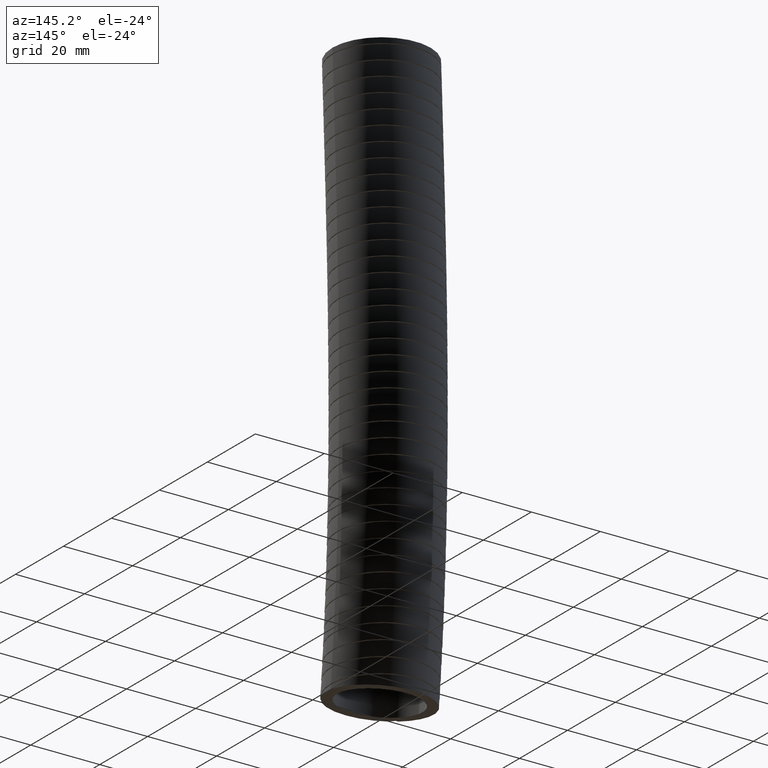
[diagram: clean part render]
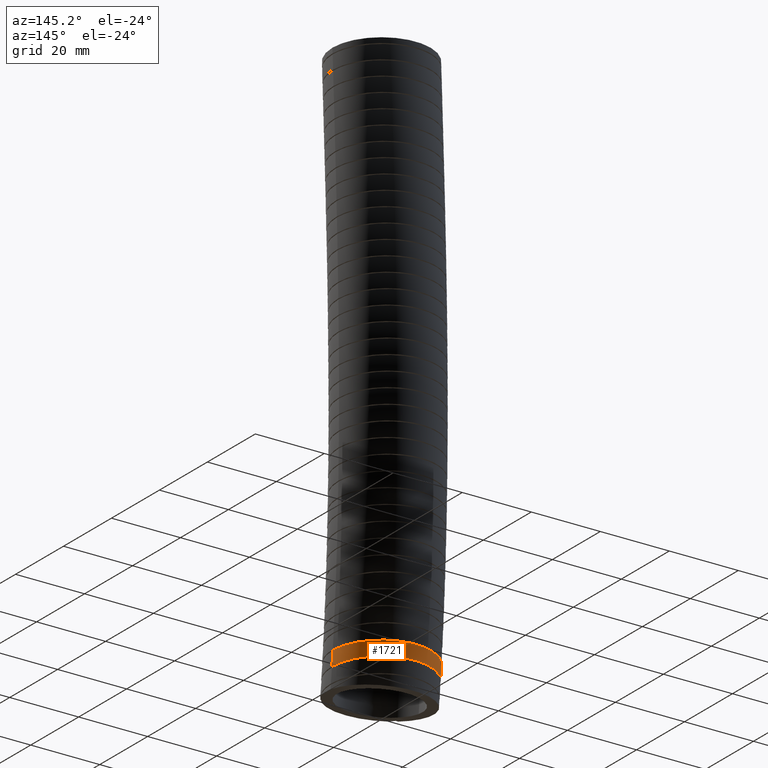
[diagram: same view with one face highlighted and labeled with its STEP entity id]
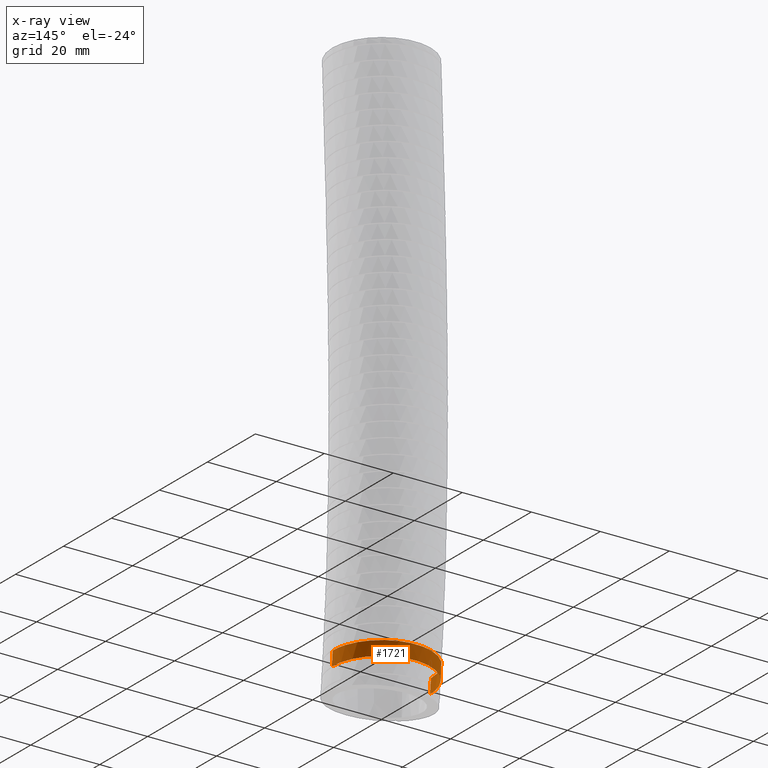
[diagram: x-ray of the same camera — body ghosted, the highlighted face saturated]
A machine part, auxiliary view. The second image highlights one B-rep face of the part: STEP entity #1721.
The next image is the same camera in x-ray: the body ghosted, the highlighted face saturated — about 0% of this face is hidden behind the body in this view.
In plain terms, the highlighted face is a freeform B-spline surface patch.
Its self-contained STEP definition (entity closure, byte-faithful):
#188 = EDGE_CURVE ( 'NONE', #1097, #1078, #15133, .T. ) ;
#1074 = EDGE_CURVE ( 'NONE', #1091, #1085, #3724, .T. ) ;
#1078 = VERTEX_POINT ( 'NONE', #3740 ) ;
#1085 = VERTEX_POINT ( 'NONE', #3812 ) ;
#1091 = VERTEX_POINT ( 'NONE', #3841 ) ;
#1097 = VERTEX_POINT ( 'NONE', #3878 ) ;
#1709 = ORIENTED_EDGE ( 'NONE', *, *, #188, .T. ) ;
#1710 = EDGE_CURVE ( 'NONE', #1078, #1085, #6601, .T. ) ;
#1711 = ORIENTED_EDGE ( 'NONE', *, *, #1710, .T. ) ;
#1713 = EDGE_CURVE ( 'NONE', #1091, #1097, #6744, .T. ) ;
#1714 = ORIENTED_EDGE ( 'NONE', *, *, #1074, .F. ) ;
#1720 = EDGE_LOOP ( 'NONE', ( #1714, #1722, #1709, #1711 ) ) ;
#1721 = ADVANCED_FACE ( 'NONE', ( #6757 ), #6846, .T. ) ;
#1722 = ORIENTED_EDGE ( 'NONE', *, *, #1713, .T. ) ;
#3719 = CARTESIAN_POINT ( 'NONE',  ( -0.5600000000000000500, 0.004579506568496222000, -6.185293988126973700 ) ) ;
#3724 = B_SPLINE_CURVE_WITH_KNOTS ( 'NONE', 3,
 ( #3719, #3763, #3762, #3761 ),
 .UNSPECIFIED., .F., .F.,
 ( 4, 4 ),
 ( 0.9412347365150162100, 0.9655731693197848700 ),
 .UNSPECIFIED. ) ;
#3740 = CARTESIAN_POINT ( 'NONE',  ( 0.5600000000000000500, -0.009474696098405479400, -6.344636470994580600 ) ) ;
#3761 = CARTESIAN_POINT ( 'NONE',  ( -0.5600000000000000500, -0.009474696098404102000, -6.344636470994571700 ) ) ;
#3762 = CARTESIAN_POINT ( 'NONE',  ( -0.5600000000000000500, -0.004703679289330347500, -6.291525943041802900 ) ) ;
#3763 = CARTESIAN_POINT ( 'NONE',  ( -0.5600000000000000500, -2.489960995242945900E-006, -6.238412474942438600 ) ) ;
#3812 = CARTESIAN_POINT ( 'NONE',  ( -0.5600000000000000500, -0.009474696098404102000, -6.344636470994571700 ) ) ;
#3841 = CARTESIAN_POINT ( 'NONE',  ( -0.5600000000000000500, 0.004579506568496222000, -6.185293988126973700 ) ) ;
#3878 = CARTESIAN_POINT ( 'NONE',  ( 0.5600000000000000500, 0.004579506601640613700, -6.185293987934851000 ) ) ;
#6592 = CARTESIAN_POINT ( 'NONE',  ( 0.5312811248861454300, 0.1718172325464569500, -6.344636470994572600 ) ) ;
#6593 = CARTESIAN_POINT ( 'NONE',  ( 0.5419118283538124600, 0.1368485339517939400, -6.344636470994566400 ) ) ;
#6594 = CARTESIAN_POINT ( 'NONE',  ( 0.5527283871951416100, 0.08261074771095514000, -6.344636470994566400 ) ) ;
#6595 = CARTESIAN_POINT ( 'NONE',  ( 0.5554614676232521000, 0.06423917054154734700, -6.344636470994571700 ) ) ;
#6596 = CARTESIAN_POINT ( 'NONE',  ( 0.5590887064225053000, 0.02749530520513777900, -6.344636470994572600 ) ) ;
#6597 = CARTESIAN_POINT ( 'NONE',  ( 0.5599999999999999400, 0.009048242773334326900, -6.344636470994581500 ) ) ;
#6598 = CARTESIAN_POINT ( 'NONE',  ( 0.5600000000000000500, -0.009474696098405479400, -6.344636470994580600 ) ) ;
#6601 = B_SPLINE_CURVE_WITH_KNOTS ( 'NONE', 3,
 ( #6598, #6597, #6596, #6595, #6594, #6593, #6592, #6674, #6673, #6672, #6671, #6670, #6669, #6668, #6667, #6666, #6665, #6664, #6663, #6662, #6661, #6660, #6659, #6658, #6657, #6656, #6655, #6653, #6652, #6651, #6650, #6649, #6648, #6647, #6646, #6645, #6644, #6643, #6642, #6641, #6640, #6639, #6638, #6637, #6636, #6635, #6634, #6633, #6632 ),
 .UNSPECIFIED., .F., .F.,
 ( 4, 2, 2, 2, 2, 2, 2, 2, 2, 2, 2, 2, 2, 2, 2, 2, 2, 2, 1, 2, 2, 2, 2, 2, 4 ),
 ( 0.0000000000000000000, 0.001406580719670298800, 0.002813161439340597500, 0.005626322878681197700, 0.007032903598351497800, 0.008439484318021798700, 0.01125264575736240100, 0.01265922647703270200, 0.01406580719670300800, 0.01687896863604361500, 0.01969213007538422200, 0.02109871079505452500, 0.02250529151472483200, 0.02531845295406543600, 0.02672503367373574000, 0.02813161439340604700, 0.03094477583274665700, 0.03235135655241696400, 0.03375793727208727800, 0.03516451799175758500, 0.03657109871142789200, 0.03938426015076852000, 0.04079084087043883400, 0.04219742159010914100, 0.04501058302944976200 ),
 .UNSPECIFIED. ) ;
#6632 = CARTESIAN_POINT ( 'NONE',  ( -0.5600000000000000500, -0.009474696098404102000, -6.344636470994571700 ) ) ;
#6633 = CARTESIAN_POINT ( 'NONE',  ( -0.5599999999999999400, 0.02726005440427129200, -6.344636470994572600 ) ) ;
#6634 = CARTESIAN_POINT ( 'NONE',  ( -0.5564412073094886500, 0.06361003411306205600, -6.344636470994571700 ) ) ;
#6635 = CARTESIAN_POINT ( 'NONE',  ( -0.5457947789936836700, 0.1175610856035945000, -6.344636470994571700 ) ) ;
#6636 = CARTESIAN_POINT ( 'NONE',  ( -0.5413313899076093200, 0.1355240193334814300, -6.344636470994572600 ) ) ;
#6637 = CARTESIAN_POINT ( 'NONE',  ( -0.5306594047788184600, 0.1708944209070781000, -6.344636470994572600 ) ) ;
#6638 = CARTESIAN_POINT ( 'NONE',  ( -0.5244949587176480600, 0.1881852768559424400, -6.344636470994571700 ) ) ;
#6639 = CARTESIAN_POINT ( 'NONE',  ( -0.5035887386781281400, 0.2389093101038390100, -6.344636470994574400 ) ) ;
#6640 = CARTESIAN_POINT ( 'NONE',  ( -0.4864570543319090600, 0.2712048872595196300, -6.344636470994570800 ) ) ;
#6641 = CARTESIAN_POINT ( 'NONE',  ( -0.4558342415702581500, 0.3173038109542701800, -6.344636470994574400 ) ) ;
#6642 = CARTESIAN_POINT ( 'NONE',  ( -0.4448156818517940400, 0.3322313429846535700, -6.344636470994577100 ) ) ;
#6643 = CARTESIAN_POINT ( 'NONE',  ( -0.4216045536915513100, 0.3606496335931740300, -6.344636470994577900 ) ) ;
#6644 = CARTESIAN_POINT ( 'NONE',  ( -0.3971125220149374600, 0.3877990486179720400, -6.344636470994566400 ) ) ;
#6645 = CARTESIAN_POINT ( 'NONE',  ( -0.3700916024010133500, 0.4124433224540648400, -6.344636470994565500 ) ) ;
#6646 = CARTESIAN_POINT ( 'NONE',  ( -0.3417860799822435800, 0.4358150561549981600, -6.344636470994565500 ) ) ;
#6647 = CARTESIAN_POINT ( 'NONE',  ( -0.3269034741015426300, 0.4469202310102173300, -6.344636470994576200 ) ) ;
#6648 = CARTESIAN_POINT ( 'NONE',  ( -0.2809862147107234900, 0.4777584033159156300, -6.344636470994576200 ) ) ;
#6649 = CARTESIAN_POINT ( 'NONE',  ( -0.2487790601573358600, 0.4950428050151481900, -6.344636470994568200 ) ) ;
#6650 = CARTESIAN_POINT ( 'NONE',  ( -0.1981272861311325400, 0.5161654282654074600, -6.344636470994565500 ) ) ;
#6651 = CARTESIAN_POINT ( 'NONE',  ( -0.1808504006507300500, 0.5223999201336055900, -6.344636470994575300 ) ) ;
#6652 = CARTESIAN_POINT ( 'NONE',  ( -0.1454847133053336600, 0.5332027957108961300, -6.344636470994574400 ) ) ;
#6653 = CARTESIAN_POINT ( 'NONE',  ( -0.1275665089770549000, 0.5377124780679880500, -6.344636470994570800 ) ) ;
#6655 = CARTESIAN_POINT ( 'NONE',  ( -0.07366987453226313300, 0.5484998158076152000, -6.344636470994567300 ) ) ;
#6656 = CARTESIAN_POINT ( 'NONE',  ( -0.03732322780077641800, 0.5521324568107837100, -6.344636470994572600 ) ) ;
#6657 = CARTESIAN_POINT ( 'NONE',  ( 0.01782657050802937900, 0.5521874384532484700, -6.344636470994572600 ) ) ;
#6658 = CARTESIAN_POINT ( 'NONE',  ( 0.03640469586908776100, 0.5512851424663898200, -6.344636470994575300 ) ) ;
#6659 = CARTESIAN_POINT ( 'NONE',  ( 0.07302836479637493700, 0.5476791939979237500, -6.344636470994574400 ) ) ;
#6660 = CARTESIAN_POINT ( 'NONE',  ( 0.09113930316635500400, 0.5449844400785043300, -6.344636470994576200 ) ) ;
#6661 = CARTESIAN_POINT ( 'NONE',  ( 0.1448826688183757500, 0.5342836065271762100, -6.344636470994577100 ) ) ;
#6662 = CARTESIAN_POINT ( 'NONE',  ( 0.1799643980707702200, 0.5236730996596132800, -6.344636470994575300 ) ) ;
#6663 = CARTESIAN_POINT ( 'NONE',  ( 0.2483664516240158500, 0.4952797951043057000, -6.344636470994575300 ) ) ;
#6664 = CARTESIAN_POINT ( 'NONE',  ( 0.2806059408458361200, 0.4779531942337949000, -6.344636470994576200 ) ) ;
#6665 = CARTESIAN_POINT ( 'NONE',  ( 0.3261431191296997300, 0.4474602495004289000, -6.344636470994574400 ) ) ;
#6666 = CARTESIAN_POINT ( 'NONE',  ( 0.3408483355769703600, 0.4365398419175208800, -6.344636470994570000 ) ) ;
#6667 = CARTESIAN_POINT ( 'NONE',  ( 0.3692894073815840600, 0.4131522552550407900, -6.344636470994570000 ) ) ;
#6668 = CARTESIAN_POINT ( 'NONE',  ( 0.3830492768056266700, 0.4006461641864710300, -6.344636470994570000 ) ) ;
#6669 = CARTESIAN_POINT ( 'NONE',  ( 0.4219630038852683600, 0.3616111970613823400, -6.344636470994572600 ) ) ;
#6670 = CARTESIAN_POINT ( 'NONE',  ( 0.4450902432665512800, 0.3333452421073884700, -6.344636470994570000 ) ) ;
#6671 = CARTESIAN_POINT ( 'NONE',  ( 0.4755984682462845400, 0.2876143949805785000, -6.344636470994570000 ) ) ;
#6672 = CARTESIAN_POINT ( 'NONE',  ( 0.4850976339772119000, 0.2717508372600084300, -6.344636470994570000 ) ) ;
#6673 = CARTESIAN_POINT ( 'NONE',  ( 0.5024925060162613900, 0.2391356389312004600, -6.344636470994570000 ) ) ;
#6674 = CARTESIAN_POINT ( 'NONE',  ( 0.5103208956012695900, 0.2225256669041016900, -6.344636470994574400 ) ) ;
#6727 = CARTESIAN_POINT ( 'NONE',  ( -0.2810683164396166600, 0.4915439016547379400, -6.185293988126971100 ) ) ;
#6728 = CARTESIAN_POINT ( 'NONE',  ( -0.3267595036676836400, 0.4608811490188277600, -6.185293988126970200 ) ) ;
#6729 = CARTESIAN_POINT ( 'NONE',  ( -0.3416382069138244600, 0.4497989095027433200, -6.185293988126967500 ) ) ;
#6730 = CARTESIAN_POINT ( 'NONE',  ( -0.3700885307313587200, 0.4263264537110609300, -6.185293988126969300 ) ) ;
#6731 = CARTESIAN_POINT ( 'NONE',  ( -0.3836353094305957600, 0.4139724413086728900, -6.185293988126969300 ) ) ;
#6732 = CARTESIAN_POINT ( 'NONE',  ( -0.4222972292111605300, 0.3751087160127374900, -6.185293988126971100 ) ) ;
#6733 = CARTESIAN_POINT ( 'NONE',  ( -0.4454529158887659500, 0.3468145831115914100, -6.185293988126972000 ) ) ;
#6734 = CARTESIAN_POINT ( 'NONE',  ( -0.4761372072978692900, 0.3006858560620124200, -6.185293988126973700 ) ) ;
#6735 = CARTESIAN_POINT ( 'NONE',  ( -0.4856107656860347800, 0.2847871245176335500, -6.185293988126975500 ) ) ;
#6736 = CARTESIAN_POINT ( 'NONE',  ( -0.5028135885299636100, 0.2524228464238910700, -6.185293988126973700 ) ) ;
#6737 = CARTESIAN_POINT ( 'NONE',  ( -0.5183627812871963700, 0.2193580528004559800, -6.185293988126960400 ) ) ;
#6738 = CARTESIAN_POINT ( 'NONE',  ( -0.5306443516939498600, 0.1849090196060896900, -6.185293988126973700 ) ) ;
#6739 = CARTESIAN_POINT ( 'NONE',  ( -0.5412647219978759000, 0.1497562640500415800, -6.185293988126973700 ) ) ;
#6740 = CARTESIAN_POINT ( 'NONE',  ( -0.5457602171101523200, 0.1317265826454416800, -6.185293988126973700 ) ) ;
#6741 = CARTESIAN_POINT ( 'NONE',  ( -0.5564675456240608700, 0.07752646228012283200, -6.185293988126973700 ) ) ;
#6742 = CARTESIAN_POINT ( 'NONE',  ( -0.5599999999999999400, 0.04116479225929748500, -6.185293988126967500 ) ) ;
#6743 = CARTESIAN_POINT ( 'NONE',  ( -0.5600000000000000500, 0.004579506568496222000, -6.185293988126973700 ) ) ;
#6744 = B_SPLINE_CURVE_WITH_KNOTS ( 'NONE', 3,
 ( #6743, #6742, #6741, #6740, #6739, #6738, #6737, #6736, #6735, #6734, #6733, #6732, #6731, #6730, #6729, #6728, #6727, #6794, #6793, #6792, #6791, #6790, #6789, #6788, #6787, #6786, #6785, #6784, #6783, #6782, #6781, #6780, #6779, #6778, #6777, #6776, #6775, #6774, #6773, #6772, #6771, #6770, #6769, #6768, #6767, #6766, #6765, #6764, #6763 ),
 .UNSPECIFIED., .F., .F.,
 ( 4, 2, 2, 1, 2, 2, 2, 2, 2, 2, 2, 2, 2, 2, 2, 2, 2, 2, 2, 2, 2, 2, 2, 2, 4 ),
 ( 0.04452916670335532000, 0.04731139251084388900, 0.04870250541458817600, 0.05009361831833246400, 0.05148473122207675200, 0.05287584412582103900, 0.05565806993330960800, 0.05704918283705388800, 0.05844029574079816900, 0.06122252154828673700, 0.06261363445203102500, 0.06400474735577529900, 0.06678697316326386000, 0.06817808606700814800, 0.06956919897075242200, 0.07096031187449670900, 0.07235142477824099700, 0.07513365058572955800, 0.07791587639321812000, 0.08069810220070669500, 0.08208921510445096900, 0.08348032800819527000, 0.08487144091193954400, 0.08626255381568383200, 0.08904477962317239300 ),
 .UNSPECIFIED. ) ;
#6757 = FACE_OUTER_BOUND ( 'NONE', #1720, .T. ) ;
#6763 = CARTESIAN_POINT ( 'NONE',  ( 0.5600000000000000500, 0.004579506601640613700, -6.185293987934851000 ) ) ;
#6764 = CARTESIAN_POINT ( 'NONE',  ( 0.5599999999999997200, 0.04161686764436273200, -6.185293987934850100 ) ) ;
#6765 = CARTESIAN_POINT ( 'NONE',  ( 0.5563800467413700900, 0.07827235562982733100, -6.185293988126966600 ) ) ;
#6766 = CARTESIAN_POINT ( 'NONE',  ( 0.5455399946792436300, 0.1326842276666141100, -6.185293988126967500 ) ) ;
#6767 = CARTESIAN_POINT ( 'NONE',  ( 0.5410373648540588400, 0.1506006530648547900, -6.185293988126975500 ) ) ;
#6768 = CARTESIAN_POINT ( 'NONE',  ( 0.5303878201088884100, 0.1856619905430228500, -6.185293988126975500 ) ) ;
#6769 = CARTESIAN_POINT ( 'NONE',  ( 0.5242303260295591000, 0.2028613948196477700, -6.185293988126973700 ) ) ;
#6770 = CARTESIAN_POINT ( 'NONE',  ( 0.5102660253109521100, 0.2366040914519858800, -6.185293988126970200 ) ) ;
#6771 = CARTESIAN_POINT ( 'NONE',  ( 0.5024592553030412500, 0.2531473983799976100, -6.185293988126970200 ) ) ;
#6772 = CARTESIAN_POINT ( 'NONE',  ( 0.4851648555458352200, 0.2855653505520660000, -6.185293988126970200 ) ) ;
#6773 = CARTESIAN_POINT ( 'NONE',  ( 0.4756191425108907700, 0.3015176038521043000, -6.185293988126967500 ) ) ;
#6774 = CARTESIAN_POINT ( 'NONE',  ( 0.4449634965828613800, 0.3474404400338089700, -6.185293988126967500 ) ) ;
#6775 = CARTESIAN_POINT ( 'NONE',  ( 0.4217977524539592800, 0.3756856731230585100, -6.185293988126971100 ) ) ;
#6776 = CARTESIAN_POINT ( 'NONE',  ( 0.3700928564637596700, 0.4275090171466637300, -6.185293988126974600 ) ) ;
#6777 = CARTESIAN_POINT ( 'NONE',  ( 0.3412501916113146500, 0.4512228007769304400, -6.185293988126970200 ) ) ;
#6778 = CARTESIAN_POINT ( 'NONE',  ( 0.2803955468773016700, 0.4919276727910915100, -6.185293988126970200 ) ) ;
#6779 = CARTESIAN_POINT ( 'NONE',  ( 0.2482004050124299900, 0.5091847124734388800, -6.185293988126971100 ) ) ;
#6780 = CARTESIAN_POINT ( 'NONE',  ( 0.1972095174447946500, 0.5303458528593544300, -6.185293988126969300 ) ) ;
#6781 = CARTESIAN_POINT ( 'NONE',  ( 0.1797048012861108500, 0.5366129869482899600, -6.185293988126969300 ) ) ;
#6782 = CARTESIAN_POINT ( 'NONE',  ( 0.1445385124375071500, 0.5472748982565637200, -6.185293988126970200 ) ) ;
#6783 = CARTESIAN_POINT ( 'NONE',  ( 0.1267909679124675500, 0.5517113977991458000, -6.185293988126972000 ) ) ;
#6784 = CARTESIAN_POINT ( 'NONE',  ( 0.09097308315780046300, 0.5588281534912006300, -6.185293988126972000 ) ) ;
#6785 = CARTESIAN_POINT ( 'NONE',  ( 0.07290273670426882000, 0.5615083757780965400, -6.185293988126970200 ) ) ;
#6786 = CARTESIAN_POINT ( 'NONE',  ( 0.03643585377882543900, 0.5650941094231530800, -6.185293988126967500 ) ) ;
#6787 = CARTESIAN_POINT ( 'NONE',  ( 0.01796962090580182500, 0.5659991582789472000, -6.185293988126967500 ) ) ;
#6788 = CARTESIAN_POINT ( 'NONE',  ( -0.03746375137064202700, 0.5659487343777537300, -6.185293988126966600 ) ) ;
#6789 = CARTESIAN_POINT ( 'NONE',  ( -0.07384876411173141300, 0.5622844275082667900, -6.185293988126965700 ) ) ;
#6790 = CARTESIAN_POINT ( 'NONE',  ( -0.1275988947944226800, 0.5515230599877566400, -6.185293988126967500 ) ) ;
#6791 = CARTESIAN_POINT ( 'NONE',  ( -0.1453766978658796400, 0.5470520318532865500, -6.185293988126966600 ) ) ;
#6792 = CARTESIAN_POINT ( 'NONE',  ( -0.1806469914435578600, 0.5362944508186475700, -6.185293988126966600 ) ) ;
#6793 = CARTESIAN_POINT ( 'NONE',  ( -0.1981081028363029800, 0.5300042492794606600, -6.185293988126964800 ) ) ;
#6794 = CARTESIAN_POINT ( 'NONE',  ( -0.2489065438489103700, 0.5088266780682704200, -6.185293988126966600 ) ) ;
#6846 =( BOUNDED_SURFACE ( )  B_SPLINE_SURFACE ( 3, 3, ( 
 ( #6888, #6887, #6886, #6885, #6884, #6883 ),
 ( #6882, #6881, #6880, #6879, #6878, #6877 ),
 ( #6876, #6875, #6874, #6873, #6872, #6871 ),
 ( #6870, #6869, #6868, #6867, #6866, #6865 ),
 ( #6864, #6863, #6862, #6861, #6860, #6859 ),
 ( #6924, #6923, #6922, #6921, #6920, #6919 ),
 ( #6918, #6916, #6915, #6914, #6913, #6912 ) ),
 .UNSPECIFIED., .F., .F., .F. ) 
 B_SPLINE_SURFACE_WITH_KNOTS ( ( 4, 3, 4 ),
 ( 4, 1, 1, 4 ),
 ( 0.0000000000000000000, 0.5000000000000000000, 1.000000000000000000 ),
 ( 0.0000000000000000000, 0.5599999999999999400, 0.9129383075960209000, 1.000000000000000000 ),
 .UNSPECIFIED. ) 
 GEOMETRIC_REPRESENTATION_ITEM ( )  RATIONAL_B_SPLINE_SURFACE ( (
 ( 1.000000000000000000, 1.000000000000000000, 1.000000000000000200, 1.000000000000000000, 1.000000000000000000, 1.000000000000000000),
 ( 0.3333333333333333100, 0.3333333333333333100, 0.3333333333333333100, 0.3333333333333333100, 0.3333333333333333100, 0.3333333333333333100),
 ( 0.3333333333333333100, 0.3333333333333333100, 0.3333333333333333100, 0.3333333333333333100, 0.3333333333333333100, 0.3333333333333333100),
 ( 1.000000000000000000, 1.000000000000000000, 1.000000000000000200, 1.000000000000000000, 1.000000000000000000, 1.000000000000000000),
 ( 0.3333333333333333100, 0.3333333333333333100, 0.3333333333333333100, 0.3333333333333333100, 0.3333333333333333100, 0.3333333333333333100),
 ( 0.3333333333333333100, 0.3333333333333333100, 0.3333333333333333100, 0.3333333333333333100, 0.3333333333333333100, 0.3333333333333333100),
 ( 1.000000000000000000, 1.000000000000000000, 1.000000000000000200, 1.000000000000000000, 1.000000000000000000, 1.000000000000000000) ) ) 
 REPRESENTATION_ITEM ( '' )  SURFACE ( )  );
#6859 = CARTESIAN_POINT ( 'NONE',  ( -0.5599999999999999400, 1.079646258180000800, -6.721938085110754600 ) ) ;
#6860 = CARTESIAN_POINT ( 'NONE',  ( -0.5599999999999999400, 1.097787370148356700, -6.524540619502538200 ) ) ;
#6861 = CARTESIAN_POINT ( 'NONE',  ( -0.5599999999999999400, 1.189470509376095100, -5.526916033196590300 ) ) ;
#6862 = CARTESIAN_POINT ( 'NONE',  ( -0.5599999999999999400, 1.265865288774999700, -3.259871941086932300 ) ) ;
#6863 = CARTESIAN_POINT ( 'NONE',  ( -0.5599999999999999400, 1.175456879146091100, -1.239378647153337200 ) ) ;
#6864 = CARTESIAN_POINT ( 'NONE',  ( -0.5599999999999999400, 1.120000000000000100, 0.0000000000000000000 ) ) ;
#6865 = CARTESIAN_POINT ( 'NONE',  ( -0.5600000000000000500, -0.02999999999999997800, -6.570000000000001200 ) ) ;
#6866 = CARTESIAN_POINT ( 'NONE',  ( -0.5599999999999999400, -0.01258014398173745500, -6.380031713690432800 ) ) ;
#6867 = CARTESIAN_POINT ( 'NONE',  ( -0.5599999999999999400, 0.07545784880698545900, -5.419953363865131400 ) ) ;
#6868 = CARTESIAN_POINT ( 'NONE',  ( -0.5599999999999999400, 0.1443774054838784200, -3.232434222864085900 ) ) ;
#6869 = CARTESIAN_POINT ( 'NONE',  ( -0.5600000000000000500, 0.05489119717643116400, -1.228947034284315200 ) ) ;
#6870 = CARTESIAN_POINT ( 'NONE',  ( -0.5600000000000000500, 6.858022075225177600E-017, 0.0000000000000000000 ) ) ;
#6871 = CARTESIAN_POINT ( 'NONE',  ( -0.5600000000000001600, -1.139646258180001100, -6.418061914889248600 ) ) ;
#6872 = CARTESIAN_POINT ( 'NONE',  ( -0.5600000000000001600, -1.122947658111831800, -6.235522807878326500 ) ) ;
#6873 = CARTESIAN_POINT ( 'NONE',  ( -0.5600000000000000500, -1.038554811762124200, -5.312990694533671600 ) ) ;
#6874 = CARTESIAN_POINT ( 'NONE',  ( -0.5600000000000000500, -0.9771104778072428100, -3.204996504641237600 ) ) ;
#6875 = CARTESIAN_POINT ( 'NONE',  ( -0.5600000000000001600, -1.065674484793228500, -1.218515421415292500 ) ) ;
#6876 = CARTESIAN_POINT ( 'NONE',  ( -0.5600000000000001600, -1.119999999999999900, 0.0000000000000000000 ) ) ;
#6877 = CARTESIAN_POINT ( 'NONE',  ( 0.5600000000000000500, -1.139646258180001100, -6.418061914889248600 ) ) ;
#6878 = CARTESIAN_POINT ( 'NONE',  ( 0.5600000000000000500, -1.122947658111831800, -6.235522807878326500 ) ) ;
#6879 = CARTESIAN_POINT ( 'NONE',  ( 0.5600000000000000500, -1.038554811762124600, -5.312990694533671600 ) ) ;
#6880 = CARTESIAN_POINT ( 'NONE',  ( 0.5600000000000000500, -0.9771104778072428100, -3.204996504641237600 ) ) ;
#6881 = CARTESIAN_POINT ( 'NONE',  ( 0.5600000000000001600, -1.065674484793228500, -1.218515421415292500 ) ) ;
#6882 = CARTESIAN_POINT ( 'NONE',  ( 0.5600000000000000500, -1.120000000000000100, 0.0000000000000000000 ) ) ;
#6883 = CARTESIAN_POINT ( 'NONE',  ( 0.5600000000000000500, -0.03000000000000004700, -6.570000000000001200 ) ) ;
#6884 = CARTESIAN_POINT ( 'NONE',  ( 0.5599999999999999400, -0.01258014398173752300, -6.380031713690432800 ) ) ;
#6885 = CARTESIAN_POINT ( 'NONE',  ( 0.5599999999999999400, 0.07545784880698538900, -5.419953363865131400 ) ) ;
#6886 = CARTESIAN_POINT ( 'NONE',  ( 0.5599999999999999400, 0.1443774054838783700, -3.232434222864085900 ) ) ;
#6887 = CARTESIAN_POINT ( 'NONE',  ( 0.5600000000000000500, 0.05489119717643108800, -1.228947034284315200 ) ) ;
#6888 = CARTESIAN_POINT ( 'NONE',  ( 0.5600000000000000500, 0.0000000000000000000, 0.0000000000000000000 ) ) ;
#6912 = CARTESIAN_POINT ( 'NONE',  ( 0.5600000000000000500, -0.03000000000000004700, -6.570000000000001200 ) ) ;
#6913 = CARTESIAN_POINT ( 'NONE',  ( 0.5599999999999999400, -0.01258014398173752300, -6.380031713690432800 ) ) ;
#6914 = CARTESIAN_POINT ( 'NONE',  ( 0.5599999999999999400, 0.07545784880698538900, -5.419953363865131400 ) ) ;
#6915 = CARTESIAN_POINT ( 'NONE',  ( 0.5599999999999999400, 0.1443774054838783700, -3.232434222864085900 ) ) ;
#6916 = CARTESIAN_POINT ( 'NONE',  ( 0.5600000000000000500, 0.05489119717643108800, -1.228947034284315200 ) ) ;
#6918 = CARTESIAN_POINT ( 'NONE',  ( 0.5600000000000000500, 0.0000000000000000000, 0.0000000000000000000 ) ) ;
#6919 = CARTESIAN_POINT ( 'NONE',  ( 0.5600000000000000500, 1.079646258180000800, -6.721938085110754600 ) ) ;
#6920 = CARTESIAN_POINT ( 'NONE',  ( 0.5600000000000000500, 1.097787370148356700, -6.524540619502538200 ) ) ;
#6921 = CARTESIAN_POINT ( 'NONE',  ( 0.5600000000000000500, 1.189470509376095100, -5.526916033196590300 ) ) ;
#6922 = CARTESIAN_POINT ( 'NONE',  ( 0.5600000000000000500, 1.265865288774999700, -3.259871941086932300 ) ) ;
#6923 = CARTESIAN_POINT ( 'NONE',  ( 0.5600000000000001600, 1.175456879146091100, -1.239378647153337200 ) ) ;
#6924 = CARTESIAN_POINT ( 'NONE',  ( 0.5600000000000000500, 1.120000000000000100, 0.0000000000000000000 ) ) ;
#15133 = B_SPLINE_CURVE_WITH_KNOTS ( 'NONE', 3,
 ( #15267, #15265, #15264, #15263 ),
 .UNSPECIFIED., .F., .F.,
 ( 4, 4 ),
 ( 0.9412347364854564100, 0.9655731693197861000 ),
 .UNSPECIFIED. ) ;
#15263 = CARTESIAN_POINT ( 'NONE',  ( 0.5600000000000000500, -0.009474696098405479400, -6.344636470994580600 ) ) ;
#15264 = CARTESIAN_POINT ( 'NONE',  ( 0.5600000000000000500, -0.004703679283536338200, -6.291525942977303400 ) ) ;
#15265 = CARTESIAN_POINT ( 'NONE',  ( 0.5599999999999999400, -2.489949576056439000E-006, -6.238412474813423500 ) ) ;
#15267 = CARTESIAN_POINT ( 'NONE',  ( 0.5600000000000000500, 0.004579506601640613700, -6.185293987934851000 ) ) ;